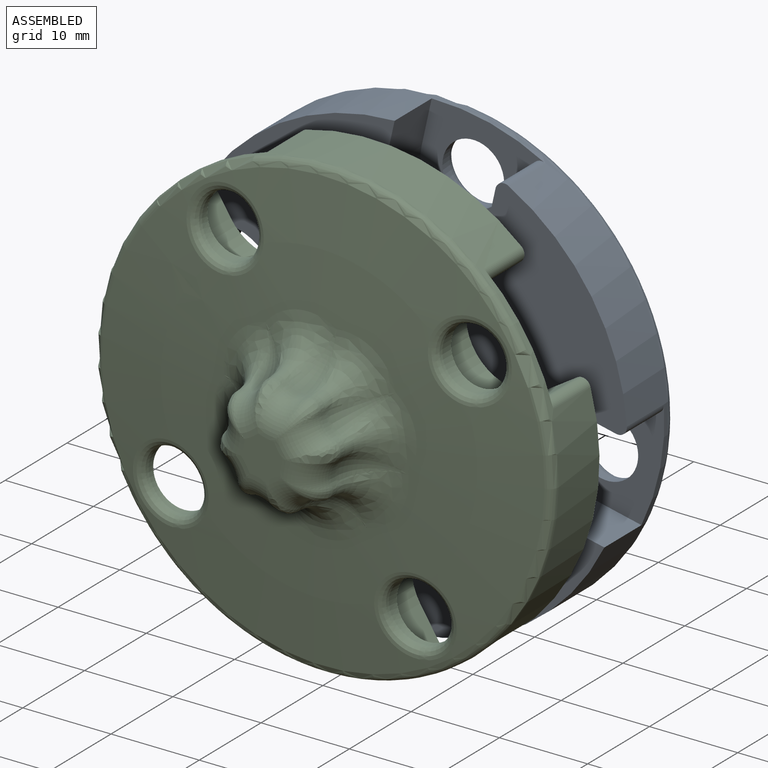
[diagram: assembled view]
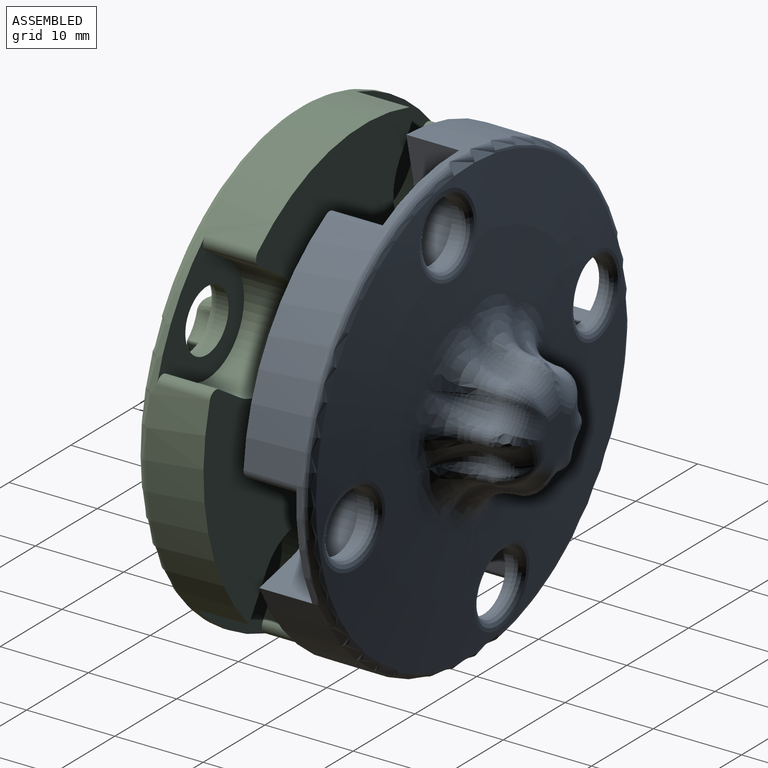
[diagram: assembled view, second angle]
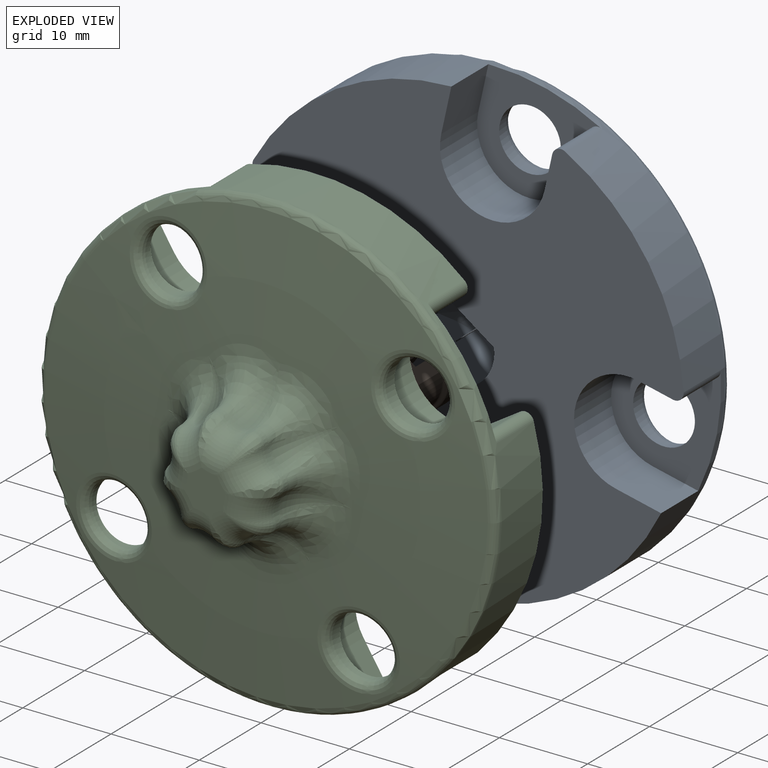
[diagram: exploded view]
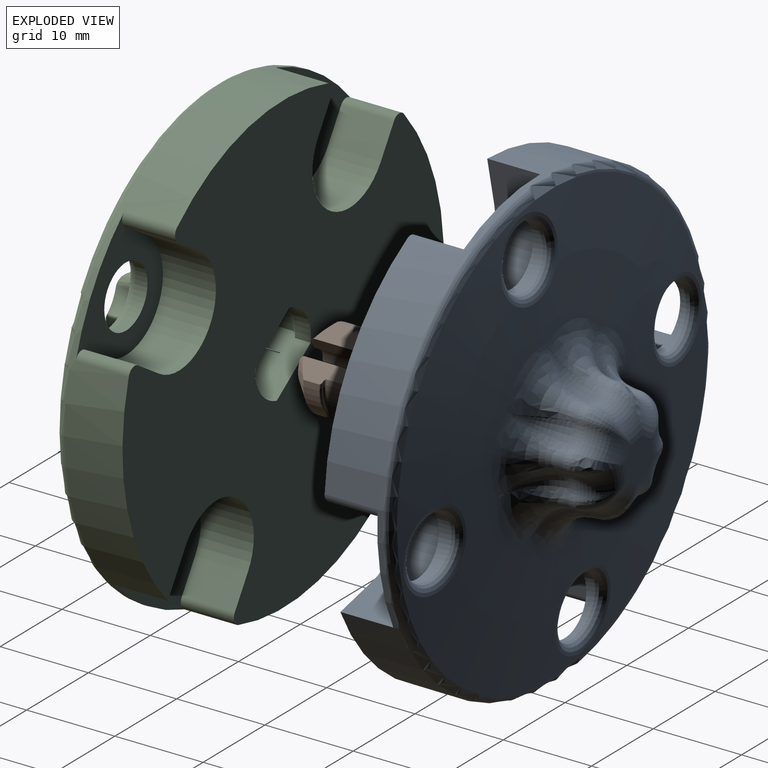
[diagram: exploded view, second angle]
ASSEMBLY  parts=3 mates=2
PART A: 93 faces, bbox 56.5x17.7x56.5 mm
  f0: plane 52x52mm, normal (0,1,0), area 1568.7mm2, adj f1,f4,f5,f11,f12,f18,f19,f20
  f1: cylinder r=26mm len=52mm, axis (0,-1,0), area 741.1mm2, adj f0,f13,f21,f25,f27,f29,f30,f33
  f2: sphere r=226.08mm, area 1361.8mm2, adj f13,f40,f41,f42,f43,f77,f80,f81
  f3: cylinder r=5mm len=6mm, axis (0,-1,0), area 12.6mm2, adj f6,f7,f11,f12
  f4: cylinder r=4.5mm len=6mm, axis (0,-1,0), area 11.8mm2, adj f0,f8,f11,f12
  f5: cylinder r=4.5mm len=6mm, axis (0,-1,0), area 11.8mm2, adj f0,f7,f11,f12
  f6: cone r=2.71mm half-angle=45deg, axis (0,1,0), area 46.9mm2, adj f3,f9,f10,f11,f12
  f7: torus R=4.25mm, axis (0,-1,0), area 6.1mm2, adj f3,f5,f11,f12
  f8: torus R=4.25mm, axis (0,-1,0), area 6.1mm2, adj f4,f9,f11,f12
  f9: cylinder r=5mm len=6mm, axis (0,-1,0), area 12.6mm2, adj f6,f8,f11,f12
  f10: plane 5.41x5.41mm, normal (0,1,0), area 23mm2, adj f6
  f11: plane 8.2x6.65mm, normal (1,0,0), area 43.2mm2, adj f0,f3,f4,f5,f6,f7,f8,f9
  f12: plane 8.2x6.65mm, normal (-1,0,0), area 43.2mm2, adj f0,f3,f4,f5,f6,f7,f8,f9
  f13: torus R=25mm, axis (0,1,0), area 235.5mm2, adj f1,f2
  f14: cylinder r=3.5mm len=7mm, axis (0,1,0), area 26.6mm2, adj f25,f43
  f15: cylinder r=3.5mm len=7mm, axis (0,1,0), area 23.4mm2, adj f29,f42
  f16: cylinder r=3.5mm len=7mm, axis (0,1,0), area 23.4mm2, adj f33,f41
  f17: cylinder r=3.5mm len=7mm, axis (0,1,0), area 23.4mm2, adj f21,f40
  f18: plane 6x3.7mm, normal (-0.92,0,0.38), area 24mm2, adj f0,f20,f21,f38
  f19: plane 6x3.7mm, normal (0.92,0,-0.38), area 24mm2, adj f0,f20,f21,f39
  f20: cylinder r=6mm len=11.54mm, axis (0,1,0), area 113.1mm2, adj f0,f18,f19,f21
  f21: plane 14.62x13.37mm, normal (0,1,0), area 88.1mm2, adj f1,f17,f18,f19,f20,f38,f39
  f22: plane 6x3.7mm, normal (0.38,0,0.92), area 24mm2, adj f0,f24,f25,f36
  f23: plane 6x3.7mm, normal (-0.38,0,-0.92), area 24mm2, adj f0,f24,f25,f37
  f24: cylinder r=6mm len=11.54mm, axis (0,1,0), area 113.1mm2, adj f0,f22,f23,f25
  f25: plane 14.62x13.37mm, normal (0,1,0), area 88.1mm2, adj f1,f14,f22,f23,f24,f36,f37
  f26: plane 6x3.7mm, normal (0.92,0,-0.38), area 24mm2, adj f0,f28,f29,f35
  f27: plane 6x4.9mm, normal (-0.92,0,0.38), area 31.8mm2, adj f0,f1,f28,f29
  f28: cylinder r=6mm len=11.54mm, axis (0,1,0), area 113.1mm2, adj f0,f26,f27,f29
  f29: plane 14.62x13.19mm, normal (0,1,0), area 87.7mm2, adj f1,f15,f26,f27,f28,f35
  f30: plane 6x4.9mm, normal (-0.38,0,-0.92), area 31.8mm2, adj f0,f1,f32,f33
  f31: plane 6x3.7mm, normal (0.38,0,0.92), area 24mm2, adj f0,f32,f33,f34
  f32: cylinder r=6mm len=11.54mm, axis (0,1,0), area 113.1mm2, adj f0,f30,f31,f33
  f33: plane 13.57x13.37mm, normal (0,1,0), area 87.7mm2, adj f1,f16,f30,f31,f32,f34
  f34: cylinder r=1mm len=6mm, axis (0,-1,0), area 11.1mm2, adj f0,f1,f31,f33
  f35: cylinder r=1mm len=6mm, axis (0,-1,0), area 11.1mm2, adj f0,f1,f26,f29
  f36: cylinder r=1mm len=6mm, axis (0,-1,0), area 11.1mm2, adj f0,f1,f22,f25
  f37: cylinder r=1mm len=6mm, axis (0,-1,0), area 11.1mm2, adj f0,f1,f23,f25
  f38: cylinder r=1mm len=6mm, axis (0,-1,0), area 11.1mm2, adj f0,f1,f18,f21
  f39: cylinder r=1mm len=6mm, axis (0,-1,0), area 11.1mm2, adj f0,f1,f19,f21
  f40: bspline ~9.05x9.05mm, area 38.8mm2, adj f2,f17
  f41: bspline ~9.05x9.05mm, area 38.8mm2, adj f2,f16
  f42: bspline ~9.05x9.05mm, area 38.8mm2, adj f2,f15
  f43: bspline ~9.05x9.05mm, area 38.8mm2, adj f2,f14
  f44: cone r=2.36mm half-angle=3deg, axis (0,-1,0), area 2.1mm2, adj f45,f59,f72,f90
  f45: cone r=1.55mm half-angle=3deg, axis (0,1,0), area 1.6mm2, adj f44,f46,f70,f92
  f46: cone r=2.36mm half-angle=3deg, axis (0,-1,0), area 2.1mm2, adj f45,f47,f68,f91
  f47: cone r=1.55mm half-angle=3deg, axis (0,1,0), area 1.6mm2, adj f46,f48,f66,f89
  f48: cone r=2.36mm half-angle=3deg, axis (0,-1,0), area 2.1mm2, adj f47,f49,f64,f87
  f49: cone r=1.55mm half-angle=3deg, axis (0,1,0), area 1.6mm2, adj f48,f50,f62,f85
  f50: cone r=2.36mm half-angle=3deg, axis (0,-1,0), area 2.1mm2, adj f49,f51,f61,f83
  f51: cone r=1.55mm half-angle=3deg, axis (0,1,0), area 1.6mm2, adj f50,f52,f63,f81
  f52: cone r=2.36mm half-angle=3deg, axis (0,-1,0), area 2.1mm2, adj f51,f53,f65,f79
  f53: cone r=1.55mm half-angle=3deg, axis (0,1,0), area 1.6mm2, adj f52,f54,f67,f77
  f54: cone r=2.36mm half-angle=3deg, axis (0,-1,0), area 2.1mm2, adj f53,f55,f69,f78
  f55: cone r=1.55mm half-angle=3deg, axis (0,1,0), area 1.6mm2, adj f54,f56,f71,f80
  f56: cone r=2.36mm half-angle=3deg, axis (0,-1,0), area 2.1mm2, adj f55,f57,f73,f82
  f57: cone r=1.55mm half-angle=3deg, axis (0,1,0), area 1.6mm2, adj f56,f58,f75,f84
  f58: cone r=2.36mm half-angle=3deg, axis (0,-1,0), area 2.1mm2, adj f57,f59,f76,f86
  f59: cone r=1.55mm half-angle=3deg, axis (0,1,0), area 1.6mm2, adj f44,f58,f74,f88
  f60: plane 4.83x4.83mm, normal (0,-1,0), area 15.8mm2, adj f61,f64,f65,f68,f69,f72,f73,f76
  f61: torus R=6.21mm, axis (0,-1,0), area 14mm2, adj f50,f60,f62,f63
  f62: bspline ~4.27x3.32mm, area 4.6mm2, adj f49,f61,f64
  f63: bspline ~3.38x3.37mm, area 4.6mm2, adj f51,f61,f65
  f64: torus R=6.21mm, axis (0,-1,0), area 14mm2, adj f48,f60,f62,f66
  f65: torus R=6.21mm, axis (0,-1,0), area 14mm2, adj f52,f60,f63,f67
  f66: bspline ~3.38x3.37mm, area 4.6mm2, adj f47,f64,f68
  f67: bspline ~4.27x3.32mm, area 4.6mm2, adj f53,f65,f69
  f68: torus R=6.21mm, axis (0,-1,0), area 14mm2, adj f46,f60,f66,f70
  f69: torus R=6.21mm, axis (0,-1,0), area 14mm2, adj f54,f60,f67,f71
  f70: bspline ~4.27x3.32mm, area 4.6mm2, adj f45,f68,f72
  f71: bspline ~3.38x3.37mm, area 4.6mm2, adj f55,f69,f73
  f72: torus R=6.21mm, axis (0,-1,0), area 14mm2, adj f44,f60,f70,f74
  f73: torus R=6.21mm, axis (0,-1,0), area 14mm2, adj f56,f60,f71,f75
  f74: bspline ~3.38x3.37mm, area 4.6mm2, adj f59,f72,f76
  f75: bspline ~4.27x3.32mm, area 4.6mm2, adj f57,f73,f76
  f76: torus R=6.21mm, axis (0,-1,0), area 14mm2, adj f58,f60,f74,f75
  f77: bspline ~10.38x5.34mm, area 37mm2, adj f2,f53,f78,f79
  f78: bspline ~4.83x4.76mm, area 11.9mm2, adj f54,f77,f80
  f79: bspline ~4.83x4.76mm, area 8.3mm2, adj f52,f77,f81
  f80: bspline ~8.47x7.49mm, area 37mm2, adj f2,f55,f78,f82
  f81: bspline ~7.49x7.49mm, area 37mm2, adj f2,f51,f79,f83
  f82: bspline ~4.83x4.76mm, area 11.8mm2, adj f56,f80,f84
  f83: bspline ~4.83x4.76mm, area 8.3mm2, adj f50,f81,f85
  f84: bspline ~10.38x5.34mm, area 37mm2, adj f2,f57,f82,f86
  f85: bspline ~11.3x5.52mm, area 37mm2, adj f2,f49,f83,f87
  f86: bspline ~4.83x4.76mm, area 12mm2, adj f58,f84,f88
  f87: bspline ~4.83x4.76mm, area 8.3mm2, adj f48,f85,f89
  f88: bspline ~8.47x8.47mm, area 37mm2, adj f2,f59,f86,f90
  f89: bspline ~8.47x7.49mm, area 37mm2, adj f2,f47,f87,f91
  f90: bspline ~4.83x4.76mm, area 12mm2, adj f44,f88,f92
  f91: bspline ~4.83x4.76mm, area 8.3mm2, adj f46,f89,f92
  f92: bspline ~10.38x5.34mm, area 37mm2, adj f2,f45,f90,f91
PART B: 38 faces, bbox 9.8x16.1x8.6 mm
  f0: torus R=4.25mm, axis (0,-1,0), area 2.6mm2, adj f1,f5,f19,f20
  f1: torus R=4.25mm, axis (0,-1,0), area 2.6mm2, adj f0,f2,f19,f20
  f2: cylinder r=4.5mm len=6mm, axis (0,-1,0), area 11.5mm2, adj f1,f3,f19,f20
  f3: cone r=2.5mm half-angle=45deg, axis (0,1,0), area 19.6mm2, adj f2,f11,f14,f18,f19,f20
  f4: plane 6x3mm, normal (0,-1,0), area 13.5mm2, adj f11,f12,f13,f15,f17,f18,f19,f20
  f5: cylinder r=4mm len=7.5mm, axis (0,-1,0), area 50.9mm2, adj f0,f19,f20,f21
  f6: cylinder r=4mm len=7.5mm, axis (0,-1,0), area 50.9mm2, adj f7,f19,f20,f26
  f7: torus R=4.25mm, axis (0,-1,0), area 2.6mm2, adj f6,f8,f19,f20
  f8: torus R=4.25mm, axis (0,-1,0), area 2.6mm2, adj f7,f9,f19,f20
  f9: cylinder r=4.5mm len=6mm, axis (0,-1,0), area 11.5mm2, adj f8,f10,f19,f20
  f10: cone r=2.5mm half-angle=45deg, axis (0,1,0), area 19.6mm2, adj f9,f12,f16,f17,f19,f20
  f11: plane 6.53x1.91mm, normal (-1,0,0), area 12mm2, adj f3,f4,f13,f14,f20
  f12: plane 6.53x1.91mm, normal (1,0,0), area 12mm2, adj f4,f10,f15,f16,f20
  f13: cylinder r=1.5mm len=6.5mm, axis (0,-1,0), area 16.4mm2, adj f4,f11,f14,f18
  f14: plane 4.58x1.5mm, normal (0,-1,0), area 4.2mm2, adj f3,f11,f13,f18
  f15: cylinder r=1.5mm len=6.5mm, axis (0,-1,0), area 16.4mm2, adj f4,f12,f16,f17
  f16: plane 4.58x1.5mm, normal (0,-1,0), area 4.2mm2, adj f10,f12,f15,f17
  f17: plane 6.53x1.91mm, normal (1,0,0), area 12mm2, adj f4,f10,f15,f16,f19
  f18: plane 6.53x1.91mm, normal (-1,0,0), area 12mm2, adj f3,f4,f13,f14,f19
  f19: plane 14.77x6.8mm, normal (0,0,1), area 58.3mm2, adj f0,f1,f2,f3,f4,f5,f6,f7
  f20: plane 14.77x6.8mm, normal (0,0,-1), area 58.3mm2, adj f0,f1,f2,f3,f4,f5,f6,f7
  f21: torus R=4.25mm, axis (0,1,0), area 2.6mm2, adj f5,f19,f20,f22
  f22: torus R=4.25mm, axis (0,1,0), area 2.6mm2, adj f19,f20,f21,f23
  f23: cylinder r=4.5mm len=6mm, axis (0,1,0), area 11.5mm2, adj f19,f20,f22,f24
  f24: cone r=2.5mm half-angle=45deg, axis (0,-1,0), area 19.6mm2, adj f19,f20,f23,f30,f33,f37
  f25: plane 6x3mm, normal (0,1,0), area 13.5mm2, adj f19,f20,f30,f31,f32,f34,f36,f37
  f26: torus R=4.25mm, axis (0,1,0), area 2.6mm2, adj f6,f19,f20,f27
  f27: torus R=4.25mm, axis (0,1,0), area 2.6mm2, adj f19,f20,f26,f28
  f28: cylinder r=4.5mm len=6mm, axis (0,1,0), area 11.5mm2, adj f19,f20,f27,f29
  f29: cone r=2.5mm half-angle=45deg, axis (0,-1,0), area 19.6mm2, adj f19,f20,f28,f31,f35,f36
  f30: plane 6.53x1.91mm, normal (-1,0,0), area 12mm2, adj f20,f24,f25,f32,f33
  f31: plane 6.53x1.91mm, normal (1,0,0), area 12mm2, adj f20,f25,f29,f34,f35
  f32: cylinder r=1.5mm len=6.5mm, axis (0,1,0), area 16.4mm2, adj f25,f30,f33,f37
  f33: plane 4.58x1.5mm, normal (0,1,0), area 4.2mm2, adj f24,f30,f32,f37
  f34: cylinder r=1.5mm len=6.5mm, axis (0,1,0), area 16.4mm2, adj f25,f31,f35,f36
  f35: plane 4.58x1.5mm, normal (0,1,0), area 4.2mm2, adj f29,f31,f34,f36
  f36: plane 6.53x1.91mm, normal (1,0,0), area 12mm2, adj f19,f25,f29,f34,f35
  f37: plane 6.53x1.91mm, normal (-1,0,0), area 12mm2, adj f19,f24,f25,f32,f33
PART C: same geometry as A
PLACE A rot(axis=(-0.46,0,0.89),180deg) t=(17.14,0.13,8.91)mm
PLACE B rot(axis=(0,1,0),35deg) t=(-127.44,-0.38,-61.04)mm
PLACE C rot(axis=(0,-1,0),55deg) t=(51.36,-0.88,57.74)mm
MATE fastened C.f1 <-> B.f0  axis (0,1,0) through (-29.81,-9.38,78.24)mm
MATE fastened A.f1 <-> B.f0  axis (0,-1,0) through (-29.81,8.63,78.24)mm
